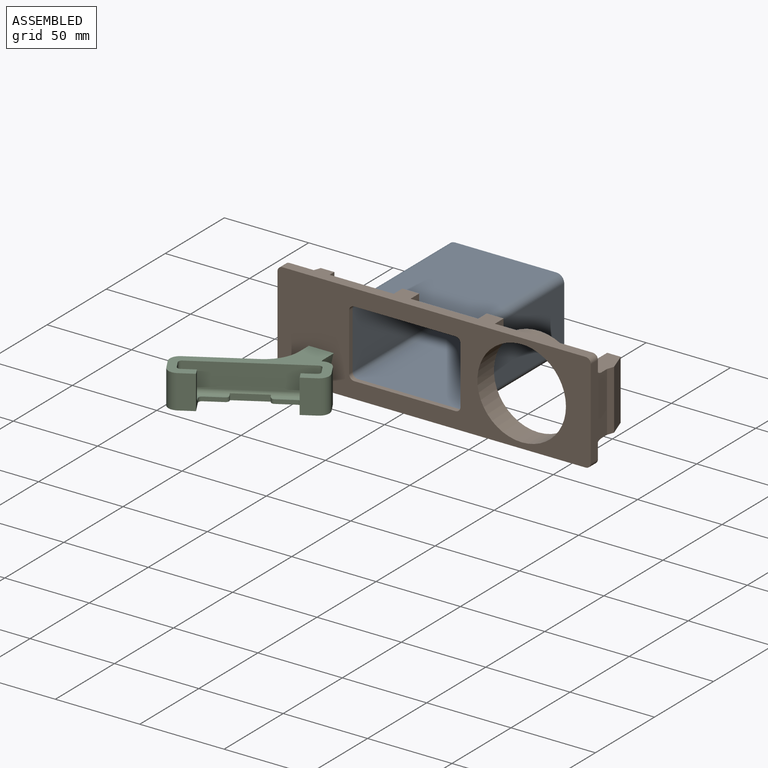
[diagram: assembled view]
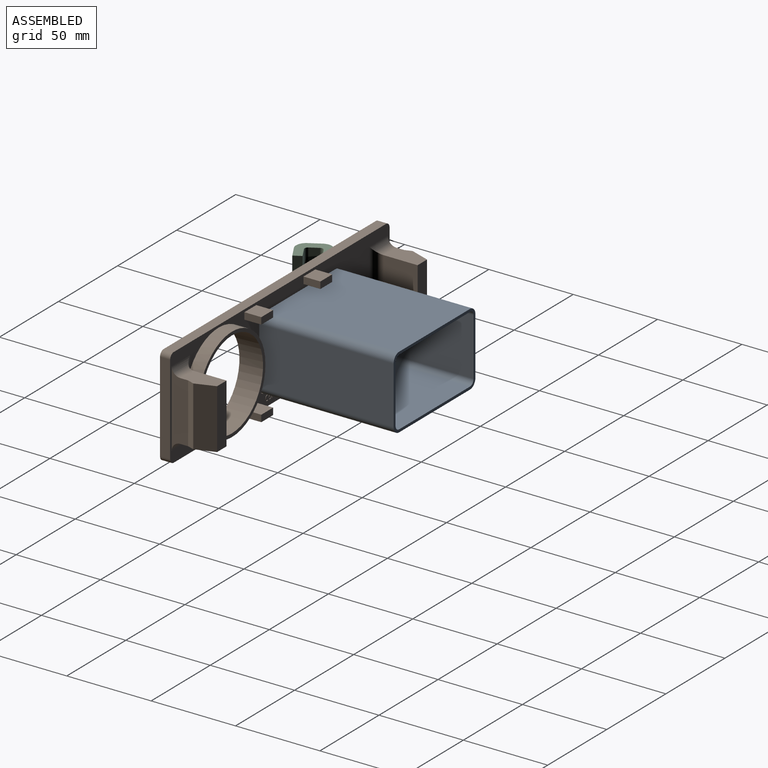
[diagram: assembled view, second angle]
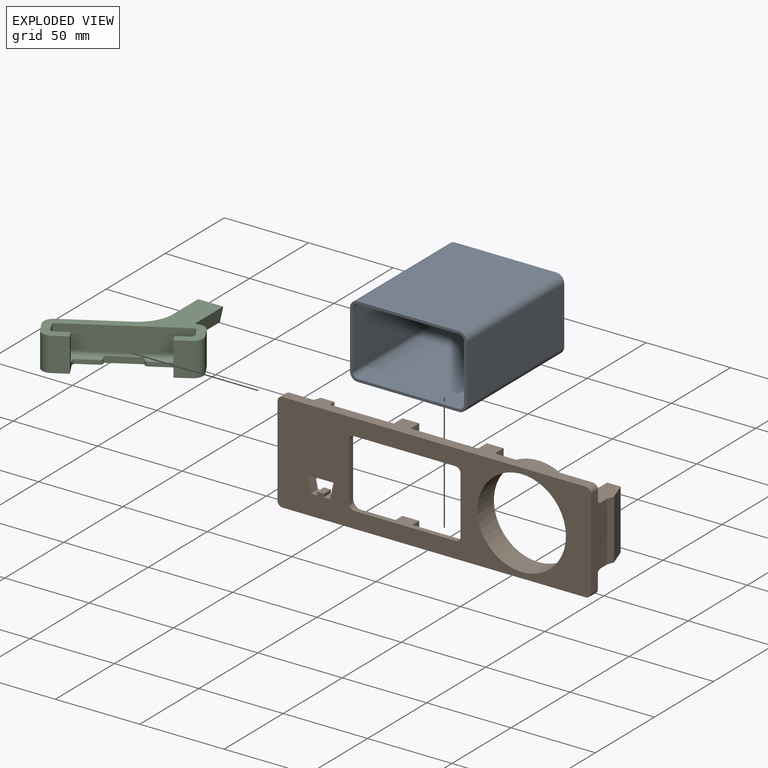
[diagram: exploded view]
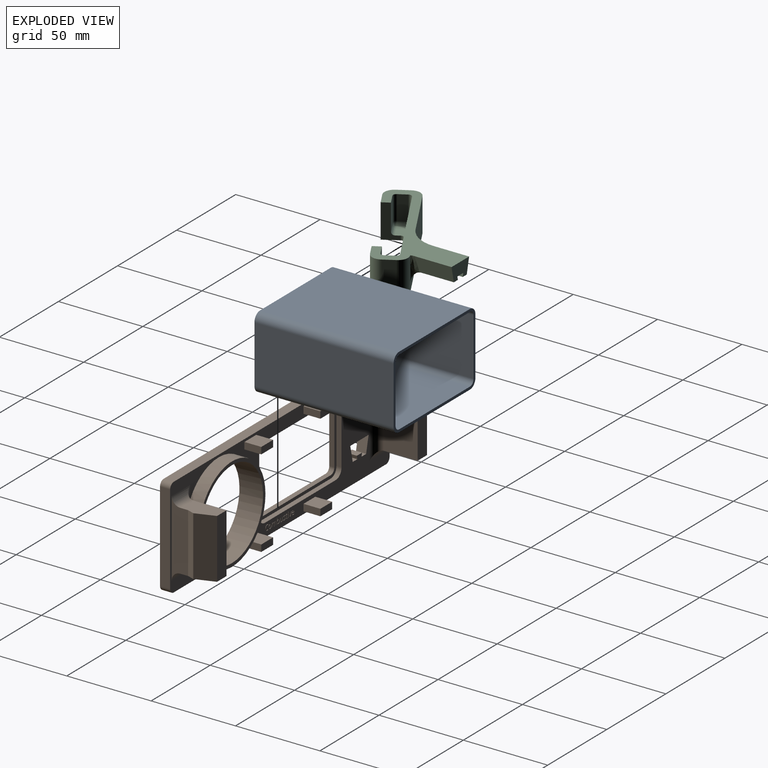
[diagram: exploded view, second angle]
ASSEMBLY  parts=3 mates=2
PART A: 18 faces, bbox 69.2x82.5x43.2 mm
  f0: plane 82.5x60mm, normal (0,0,-1), area 4950mm2, adj f1,f15,f16,f17
  f1: cylinder r=3mm len=82.5mm, axis (0,-1,0), area 388.8mm2, adj f0,f2,f16,f17
  f2: plane 82.5x34mm, normal (1,0,0), area 2805mm2, adj f1,f3,f16,f17
  f3: cylinder r=3mm len=82.5mm, axis (0,-1,0), area 388.8mm2, adj f2,f4,f16,f17
  f4: plane 82.5x60mm, normal (0,0,1), area 4950mm2, adj f3,f5,f16,f17
  f5: cylinder r=3mm len=82.5mm, axis (0,-1,0), area 388.8mm2, adj f4,f6,f16,f17
  f6: plane 82.5x34mm, normal (-1,0,0), area 2805mm2, adj f5,f15,f16,f17
  f7: cylinder r=4.6mm len=82.5mm, axis (0,-1,0), area 596.1mm2, adj f8,f14,f16,f17
  f8: plane 82.5x34mm, normal (-1,0,0), area 2805mm2, adj f7,f9,f16,f17
  f9: cylinder r=4.6mm len=82.5mm, axis (0,-1,0), area 596.1mm2, adj f8,f10,f16,f17
  f10: plane 82.5x60mm, normal (0,0,1), area 4950mm2, adj f9,f11,f16,f17
  f11: cylinder r=4.6mm len=82.5mm, axis (0,-1,0), area 596.1mm2, adj f10,f12,f16,f17
  f12: plane 82.5x34mm, normal (1,0,0), area 2805mm2, adj f11,f13,f16,f17
  f13: cylinder r=4.6mm len=82.5mm, axis (0,-1,0), area 596.1mm2, adj f12,f14,f16,f17
  f14: plane 82.5x60mm, normal (0,0,-1), area 4950mm2, adj f7,f13,f16,f17
  f15: cylinder r=3mm len=82.5mm, axis (0,-1,0), area 388.8mm2, adj f0,f6,f16,f17
  f16: plane 69.2x43.2mm, normal (0,1,0), area 339mm2, adj f0,f1,f2,f3,f4,f5,f6,f7
  f17: plane 69.2x43.2mm, normal (0,-1,0), area 339mm2, adj f0,f1,f2,f3,f4,f5,f6,f7
PART B: 277 faces, bbox 185.7x31x59.3 mm
  f0: plane 185.7x59.25mm, normal (0,1,0), area 3843.5mm2, adj f12,f18,f19,f20,f21,f27,f29,f31
  f1: plane 34x3mm, normal (1,0,0), area 102mm2, adj f5,f8,f9,f276
  f2: plane 60x3mm, normal (0,0,1), area 180mm2, adj f5,f6,f9,f276
  f3: plane 34x3mm, normal (-1,0,0), area 102mm2, adj f6,f7,f9,f276
  f4: plane 60x3mm, normal (0,0,-1), area 180mm2, adj f7,f8,f9,f276
  f5: cylinder r=3mm len=3mm, axis (0,1,0), area 14.1mm2, adj f1,f2,f9,f276
  f6: cylinder r=3mm len=3mm, axis (0,-1,0), area 14.1mm2, adj f2,f3,f9,f276
  f7: cylinder r=3mm len=3mm, axis (0,1,0), area 14.1mm2, adj f3,f4,f9,f276
  f8: cylinder r=3mm len=3mm, axis (0,-1,0), area 14.1mm2, adj f1,f4,f9,f276
  f9: plane 185.7x59.25mm, normal (0,-1,0), area 6079.8mm2, adj f1,f2,f3,f4,f5,f6,f7,f8
  f10: plane 35.25x11.3mm, normal (-0.94,0.33,0), area 422.5mm2, adj f11,f13,f15,f16
  f11: plane 35.25x4mm, normal (-0.94,-0.33,0), area 149.4mm2, adj f10,f12,f13,f15
  f12: plane 45.25x9.7mm, normal (-1,0,0), area 352.7mm2, adj f0,f11,f13,f15,f35,f37
  f13: plane 20x12mm, normal (0,0,-1), area 208mm2, adj f10,f11,f12,f14,f16,f37
  f14: plane 35.25x20mm, normal (1,0,0), area 705mm2, adj f13,f15,f16,f36
  f15: plane 20x12mm, normal (0,0,1), area 208mm2, adj f10,f11,f12,f14,f16,f35
  f16: plane 35.25x8mm, normal (0,1,0), area 282mm2, adj f10,f13,f14,f15
  f17: plane 20x12mm, normal (0,0,-1), area 208mm2, adj f23,f25,f26,f27,f28,f39
  f18: plane 179.7x6mm, normal (0,0,-1), area 1078.2mm2, adj f0,f9,f31,f34
  f19: plane 53.25x6mm, normal (1,0,0), area 319.5mm2, adj f0,f9,f31,f32
  f20: plane 179.7x6mm, normal (0,0,1), area 1078.2mm2, adj f0,f9,f32,f33
  f21: plane 53.25x6mm, normal (-1,0,0), area 319.5mm2, adj f0,f9,f33,f34
  f22: cylinder r=26.25mm len=52.5mm, axis (0,-1,0), area 2309.1mm2, adj f9,f30
  f23: plane 35.25x20mm, normal (-1,0,0), area 705mm2, adj f17,f24,f25,f40
  f24: plane 20x12mm, normal (0,0,1), area 208mm2, adj f23,f25,f26,f27,f28,f38
  f25: plane 35.25x8mm, normal (0,1,0), area 282mm2, adj f17,f23,f24,f28
  f26: plane 35.25x4mm, normal (0.94,-0.33,0), area 149.4mm2, adj f17,f24,f27,f28
  f27: plane 45.25x9.7mm, normal (1,0,0), area 352.7mm2, adj f0,f17,f24,f26,f38,f39
  f28: plane 35.25x11.3mm, normal (0.94,0.33,0), area 422.5mm2, adj f17,f24,f25,f26
  f29: cylinder r=28.25mm len=56.5mm, axis (0,-1,0), area 1382.8mm2, adj f0,f30,f40
  f30: plane 56.5x56.5mm, normal (0,1,0), area 342.4mm2, adj f22,f29
  f31: cylinder r=3mm len=6mm, axis (0,-1,0), area 28.3mm2, adj f0,f9,f18,f19
  f32: cylinder r=3mm len=6mm, axis (0,1,0), area 28.3mm2, adj f0,f9,f19,f20
  f33: cylinder r=3mm len=6mm, axis (0,-1,0), area 28.3mm2, adj f0,f9,f20,f21
  f34: cylinder r=3mm len=6mm, axis (0,1,0), area 28.3mm2, adj f0,f9,f18,f21
  f35: cylinder r=5mm len=15.6mm, axis (1,0,0), area 97.5mm2, adj f0,f12,f15,f36
  f36: cylinder r=5mm len=45.25mm, axis (0,0,-1), area 305.4mm2, adj f0,f14,f35,f37
  f37: cylinder r=5mm len=15.6mm, axis (-1,0,0), area 97.5mm2, adj f0,f12,f13,f36
  f38: cylinder r=5mm len=15.6mm, axis (-1,0,0), area 97.5mm2, adj f0,f24,f27,f40
  f39: cylinder r=5mm len=15.6mm, axis (1,0,0), area 97.5mm2, adj f0,f17,f27,f40
  f40: cylinder r=5mm len=45.25mm, axis (0,0,-1), area 208mm2, adj f0,f23,f29,f38,f39
  f41: plane 10x10mm, normal (0,0,1), area 100mm2, adj f0,f42,f44,f45
  f42: plane 10x4mm, normal (1,0,0), area 40mm2, adj f0,f41,f43,f45
  f43: plane 10x10mm, normal (0,0,-1), area 100mm2, adj f0,f42,f44,f45
  f44: plane 10x4mm, normal (-1,0,0), area 40mm2, adj f0,f41,f43,f45
  f45: plane 10x4mm, normal (0,1,0), area 40mm2, adj f41,f42,f43,f44
  f46: plane 10x10mm, normal (0,0,1), area 100mm2, adj f0,f47,f49,f50
  f47: plane 10x4mm, normal (1,0,0), area 40mm2, adj f0,f46,f48,f50
  f48: plane 10x10mm, normal (0,0,-1), area 100mm2, adj f0,f47,f49,f50
  f49: plane 10x4mm, normal (-1,0,0), area 40mm2, adj f0,f46,f48,f50
  f50: plane 10x4mm, normal (0,1,0), area 40mm2, adj f46,f47,f48,f49
  f51: plane 10x10mm, normal (0,0,1), area 100mm2, adj f0,f52,f54,f55
  f52: plane 10x4mm, normal (1,0,0), area 40mm2, adj f0,f51,f53,f55
  f53: plane 10x10mm, normal (0,0,-1), area 100mm2, adj f0,f52,f54,f55
  f54: plane 10x4mm, normal (-1,0,0), area 40mm2, adj f0,f51,f53,f55
  f55: plane 10x4mm, normal (0,1,0), area 40mm2, adj f51,f52,f53,f54
  f56: plane 10x10mm, normal (0,0,1), area 100mm2, adj f0,f57,f59,f60
  f57: plane 10x4mm, normal (1,0,0), area 40mm2, adj f0,f56,f58,f60
  f58: plane 10x10mm, normal (0,0,-1), area 100mm2, adj f0,f57,f59,f60
  f59: plane 10x4mm, normal (-1,0,0), area 40mm2, adj f0,f56,f58,f60
  f60: plane 10x4mm, normal (0,1,0), area 40mm2, adj f56,f57,f58,f59
  f61: plane 6x2mm, normal (-0.98,0,-0.22), area 12.3mm2, adj f0,f9,f62,f68
  f62: plane 6x4.39mm, normal (0,0,1), area 26.3mm2, adj f0,f9,f61,f63
  f63: plane 6x2mm, normal (0.98,0,-0.22), area 12.3mm2, adj f0,f9,f62,f64
  f64: plane 6x3.91mm, normal (0,0,1), area 23.5mm2, adj f0,f9,f63,f65
  f65: plane 9.4x6mm, normal (-0.98,0,0.22), area 57.8mm2, adj f0,f9,f64,f66
  f66: plane 15.5x6mm, normal (0,0,-1), area 93mm2, adj f0,f9,f65,f67
  f67: plane 9.4x6mm, normal (0.98,0,0.22), area 57.8mm2, adj f0,f9,f66,f68
  f68: plane 6x3.91mm, normal (0,0,1), area 23.5mm2, adj f0,f9,f61,f67
  f69: plane 2.41x0.4mm, normal (1,0,0), area 1mm2, adj f0,f70,f72,f73
  f70: plane 0.4x0.37mm, normal (0,0,-1), area 0.1mm2, adj f0,f69,f71,f73
  f71: plane 2.41x0.4mm, normal (-1,0,0), area 1mm2, adj f0,f70,f72,f73
  f72: plane 0.4x0.37mm, normal (0,0,1), area 0.1mm2, adj f0,f69,f71,f73
  f73: plane 2.41x0.37mm, normal (0,1,0), area 0.9mm2, adj f69,f70,f71,f72
  f74: extruded ~0.4x0.18mm, area 0.1mm2, adj f0,f75,f81,f82
  f75: extruded ~0.4x0.15mm, area 0.1mm2, adj f0,f74,f76,f82
  f76: extruded ~0.4x0.15mm, area 0.1mm2, adj f0,f75,f77,f82
  f77: extruded ~0.4x0.18mm, area 0.1mm2, adj f0,f76,f78,f82
  f78: extruded ~0.4x0.18mm, area 0.1mm2, adj f0,f77,f79,f82
  f79: extruded ~0.4x0.15mm, area 0.1mm2, adj f0,f78,f80,f82
  f80: extruded ~0.4x0.15mm, area 0.1mm2, adj f0,f79,f81,f82
  f81: extruded ~0.4x0.18mm, area 0.1mm2, adj f0,f74,f80,f82
  f82: plane 0.49x0.43mm, normal (0,1,0), area 0.2mm2, adj f74,f75,f76,f77,f78,f79,f80,f81
  f83: plane 0.43x0.4mm, normal (0,0,1), area 0.2mm2, adj f0,f84,f92,f93
  f84: plane 2.41x0.92mm, normal (0.93,0,0.35), area 1mm2, adj f0,f83,f85,f93
  f85: plane 0.4x0.39mm, normal (0,0,-1), area 0.2mm2, adj f0,f84,f86,f93
  f86: extruded ~1.6x0.58mm, area 0.7mm2, adj f0,f85,f87,f93
  f87: extruded ~0.48x0.4mm, area 0.2mm2, adj f0,f86,f88,f93
  f88: plane 0.4x0.02mm, normal (0,0,-1), area 0mm2, adj f0,f87,f89,f93
  f89: extruded ~0.65x0.4mm, area 0.3mm2, adj f0,f88,f90,f93
  f90: plane 1.43x0.52mm, normal (0.94,0,-0.34), area 0.6mm2, adj f0,f89,f91,f93
  f91: plane 0.4x0.39mm, normal (0,0,-1), area 0.2mm2, adj f0,f90,f92,f93
  f92: plane 2.41x0.92mm, normal (-0.93,0,0.35), area 1mm2, adj f0,f83,f91,f93
  f93: plane 2.41x2.26mm, normal (0,1,0), area 1.7mm2, adj f83,f84,f85,f86,f87,f88,f89,f90
  f94: extruded ~0.91x0.4mm, area 0.4mm2, adj f0,f95,f110,f111
  f95: extruded ~0.8x0.4mm, area 0.4mm2, adj f0,f94,f96,f111
  f96: extruded ~0.82x0.4mm, area 0.4mm2, adj f0,f95,f97,f111
  f97: extruded ~0.92x0.4mm, area 0.4mm2, adj f0,f96,f98,f111
  f98: extruded ~0.66x0.4mm, area 0.3mm2, adj f0,f97,f99,f111
  f99: extruded ~0.44x0.4mm, area 0.2mm2, adj f0,f98,f100,f111
  f100: extruded ~0.57x0.4mm, area 0.2mm2, adj f0,f99,f101,f111
  f101: extruded ~0.82x0.4mm, area 0.4mm2, adj f0,f100,f110,f111
  f102: extruded ~0.7x0.4mm, area 0.3mm2, adj f103,f109,f111,f112
  f103: extruded ~0.54x0.4mm, area 0.2mm2, adj f102,f104,f111,f112
  f104: extruded ~0.55x0.4mm, area 0.2mm2, adj f103,f105,f111,f112
  f105: extruded ~0.7x0.4mm, area 0.3mm2, adj f104,f106,f111,f112
  f106: extruded ~0.71x0.4mm, area 0.3mm2, adj f105,f107,f111,f112
  f107: extruded ~0.55x0.4mm, area 0.2mm2, adj f106,f108,f111,f112
  f108: extruded ~0.54x0.4mm, area 0.2mm2, adj f107,f109,f111,f112
  f109: extruded ~0.7x0.4mm, area 0.3mm2, adj f102,f108,f111,f112
  f110: extruded ~0.92x0.4mm, area 0.4mm2, adj f0,f94,f101,f111
  f111: plane 2.5x2.22mm, normal (0,1,0), area 2.2mm2, adj f94,f95,f96,f97,f98,f99,f100,f101
  f112: plane 1.88x1.46mm, normal (0,1,0), area 2.3mm2, adj f102,f103,f104,f105,f106,f107,f108,f109
  f113: extruded ~0.4x0.28mm, area 0.1mm2, adj f0,f114,f131,f132
  f114: extruded ~0.4x0.33mm, area 0.1mm2, adj f0,f113,f115,f132
  f115: plane 1.42x0.4mm, normal (1,0,0), area 0.6mm2, adj f0,f114,f116,f132
  f116: plane 0.7x0.4mm, normal (0,0,1), area 0.3mm2, adj f0,f115,f117,f132
  f117: plane 0.4x0.28mm, normal (1,0,0), area 0.1mm2, adj f0,f116,f118,f132
  f118: plane 0.7x0.4mm, normal (0,0,-1), area 0.3mm2, adj f0,f117,f119,f132
  f119: plane 0.56x0.4mm, normal (1,0,0), area 0.2mm2, adj f0,f118,f120,f132
  f120: plane 0.4x0.21mm, normal (0,0,-1), area 0.1mm2, adj f0,f119,f121,f132
  f121: plane 0.51x0.4mm, normal (-0.96,0,-0.29), area 0.2mm2, adj f0,f120,f122,f132
  f122: plane 0.4x0.35mm, normal (-0.4,0,-0.92), area 0.2mm2, adj f0,f121,f123,f132
  f123: plane 0.4x0.18mm, normal (-1,0,0), area 0.1mm2, adj f0,f122,f124,f132
  f124: plane 0.4x0.35mm, normal (0,0,1), area 0.1mm2, adj f0,f123,f125,f132
  f125: plane 1.43x0.4mm, normal (-1,0,0), area 0.6mm2, adj f0,f124,f126,f132
  f126: extruded ~0.74x0.7mm, area 0.5mm2, adj f0,f125,f127,f132
  f127: extruded ~0.4x0.21mm, area 0.1mm2, adj f0,f126,f128,f132
  f128: extruded ~0.4x0.17mm, area 0.1mm2, adj f0,f127,f129,f132
  f129: plane 0.4x0.28mm, normal (1,0,0), area 0.1mm2, adj f0,f128,f130,f132
  f130: extruded ~0.4x0.14mm, area 0.1mm2, adj f0,f129,f131,f132
  f131: extruded ~0.4x0.19mm, area 0.1mm2, adj f0,f113,f130,f132
  f132: plane 3.01x1.43mm, normal (0,1,0), area 1.5mm2, adj f113,f114,f115,f116,f117,f118,f119,f120
  f133: extruded ~0.4x0.4mm, area 0.2mm2, adj f0,f134,f157,f158
  f134: extruded ~0.58x0.4mm, area 0.3mm2, adj f0,f133,f135,f158
  f135: extruded ~0.42x0.4mm, area 0.2mm2, adj f0,f134,f136,f158
  f136: extruded ~0.4x0.16mm, area 0.1mm2, adj f0,f135,f137,f158
  f137: extruded ~0.4x0.17mm, area 0.1mm2, adj f0,f136,f138,f158
  f138: extruded ~0.4x0.22mm, area 0.1mm2, adj f0,f137,f139,f158
  f139: extruded ~0.4x0.39mm, area 0.2mm2, adj f0,f138,f140,f158
  f140: extruded ~0.66x0.4mm, area 0.3mm2, adj f0,f139,f141,f158
  f141: plane 0.4x0.3mm, normal (0.92,0,0.4), area 0.1mm2, adj f0,f140,f142,f158
  f142: extruded ~0.76x0.4mm, area 0.3mm2, adj f0,f141,f143,f158
  f143: extruded ~0.66x0.4mm, area 0.3mm2, adj f0,f142,f144,f158
  f144: extruded ~0.47x0.4mm, area 0.2mm2, adj f0,f143,f145,f158
  f145: extruded ~0.4x0.28mm, area 0.1mm2, adj f0,f144,f146,f158
  f146: extruded ~0.4x0.21mm, area 0.1mm2, adj f0,f145,f147,f158
  f147: extruded ~0.48x0.4mm, area 0.2mm2, adj f0,f146,f148,f158
  f148: extruded ~0.48x0.4mm, area 0.2mm2, adj f0,f147,f149,f158
  f149: extruded ~0.4x0.24mm, area 0.1mm2, adj f0,f148,f150,f158
  f150: extruded ~0.4x0.28mm, area 0.1mm2, adj f0,f149,f151,f158
  f151: extruded ~0.44x0.4mm, area 0.2mm2, adj f0,f150,f152,f158
  f152: extruded ~0.4x0.38mm, area 0.2mm2, adj f0,f151,f153,f158
  f153: extruded ~0.4x0.37mm, area 0.2mm2, adj f0,f152,f154,f158
  f154: plane 0.4x0.34mm, normal (-1,0,0), area 0.1mm2, adj f0,f153,f155,f158
  f155: extruded ~0.75x0.4mm, area 0.3mm2, adj f0,f154,f156,f158
  f156: extruded ~0.7x0.4mm, area 0.3mm2, adj f0,f155,f157,f158
  f157: extruded ~0.52x0.4mm, area 0.2mm2, adj f0,f133,f156,f158
  f158: plane 2.5x1.71mm, normal (0,1,0), area 1.8mm2, adj f133,f134,f135,f136,f137,f138,f139,f140
  f159: plane 0.4x0.37mm, normal (0,0,-1), area 0.1mm2, adj f0,f160,f175,f176
  f160: plane 1.58x0.4mm, normal (-1,0,0), area 0.6mm2, adj f0,f159,f161,f176
  f161: extruded ~0.67x0.4mm, area 0.3mm2, adj f0,f160,f162,f176
  f162: extruded ~0.66x0.4mm, area 0.3mm2, adj f0,f161,f163,f176
  f163: extruded ~0.45x0.4mm, area 0.2mm2, adj f0,f162,f164,f176
  f164: extruded ~0.4x0.31mm, area 0.2mm2, adj f0,f163,f165,f176
  f165: plane 0.4x0.02mm, normal (0,0,1), area 0mm2, adj f0,f164,f166,f176
  f166: plane 0.4x0.32mm, normal (-0.99,0,0.16), area 0.1mm2, adj f0,f165,f167,f176
  f167: plane 0.4x0.3mm, normal (0,0,1), area 0.1mm2, adj f0,f166,f168,f176
  f168: plane 2.41x0.4mm, normal (1,0,0), area 1mm2, adj f0,f167,f169,f176
  f169: plane 0.4x0.37mm, normal (0,0,-1), area 0.1mm2, adj f0,f168,f170,f176
  f170: plane 1.27x0.4mm, normal (-1,0,0), area 0.5mm2, adj f0,f169,f171,f176
  f171: extruded ~0.68x0.4mm, area 0.3mm2, adj f0,f170,f172,f176
  f172: extruded ~0.55x0.4mm, area 0.2mm2, adj f0,f171,f173,f176
  f173: extruded ~0.42x0.4mm, area 0.2mm2, adj f0,f172,f174,f176
  f174: extruded ~0.44x0.4mm, area 0.2mm2, adj f0,f173,f175,f176
  f175: plane 1.56x0.4mm, normal (1,0,0), area 0.6mm2, adj f0,f159,f174,f176
  f176: plane 2.46x2.02mm, normal (0,1,0), area 2.1mm2, adj f159,f160,f161,f162,f163,f164,f165,f166
  f177: plane 0.4x0.36mm, normal (0,0,1), area 0.1mm2, adj f0,f178,f204,f205
  f178: plane 1.57x0.4mm, normal (1,0,0), area 0.6mm2, adj f0,f177,f179,f205
  f179: extruded ~0.67x0.4mm, area 0.3mm2, adj f0,f178,f180,f205
  f180: extruded ~0.61x0.4mm, area 0.3mm2, adj f0,f179,f181,f205
  f181: extruded ~0.47x0.4mm, area 0.2mm2, adj f0,f180,f182,f205
  f182: extruded ~0.4x0.31mm, area 0.2mm2, adj f0,f181,f183,f205
  f183: plane 0.4x0.02mm, normal (0,0,-1), area 0mm2, adj f0,f182,f184,f205
  f184: extruded ~0.74x0.41mm, area 0.4mm2, adj f0,f183,f185,f205
  f185: extruded ~0.42x0.4mm, area 0.2mm2, adj f0,f184,f186,f205
  f186: extruded ~0.4x0.29mm, area 0.2mm2, adj f0,f185,f187,f205
  f187: plane 0.4x0.02mm, normal (0,0,-1), area 0mm2, adj f0,f186,f188,f205
  f188: plane 0.4x0.33mm, normal (0.98,0,-0.18), area 0.1mm2, adj f0,f187,f189,f205
  f189: plane 0.4x0.3mm, normal (0,0,-1), area 0.1mm2, adj f0,f188,f190,f205
  f190: plane 2.41x0.4mm, normal (-1,0,0), area 1mm2, adj f0,f189,f191,f205
  f191: plane 0.4x0.37mm, normal (0,0,1), area 0.1mm2, adj f0,f190,f192,f205
  f192: plane 1.27x0.4mm, normal (1,0,0), area 0.5mm2, adj f0,f191,f193,f205
  f193: extruded ~0.67x0.4mm, area 0.3mm2, adj f0,f192,f194,f205
  f194: extruded ~0.5x0.4mm, area 0.2mm2, adj f0,f193,f195,f205
  f195: extruded ~0.4x0.39mm, area 0.2mm2, adj f0,f194,f196,f205
  f196: extruded ~0.43x0.4mm, area 0.2mm2, adj f0,f195,f197,f205
  f197: plane 1.57x0.4mm, normal (-1,0,0), area 0.6mm2, adj f0,f196,f198,f205
  f198: plane 0.4x0.37mm, normal (0,0,1), area 0.1mm2, adj f0,f197,f199,f205
  f199: plane 1.35x0.4mm, normal (1,0,0), area 0.5mm2, adj f0,f198,f200,f205
  f200: extruded ~0.6x0.4mm, area 0.3mm2, adj f0,f199,f201,f205
  f201: extruded ~0.5x0.4mm, area 0.2mm2, adj f0,f200,f202,f205
  f202: extruded ~0.4x0.38mm, area 0.2mm2, adj f0,f201,f203,f205
  f203: extruded ~0.43x0.4mm, area 0.2mm2, adj f0,f202,f204,f205
  f204: plane 1.57x0.4mm, normal (-1,0,0), area 0.6mm2, adj f0,f177,f203,f205
  f205: plane 3.44x2.46mm, normal (0,1,0), area 3.3mm2, adj f177,f178,f179,f180,f181,f182,f183,f184
  f206: extruded ~0.76x0.4mm, area 0.3mm2, adj f0,f207,f228,f229
  f207: plane 0.4x0.02mm, normal (0,0,-1), area 0mm2, adj f0,f206,f208,f229
  f208: extruded ~0.5x0.4mm, area 0.2mm2, adj f0,f207,f209,f229
  f209: plane 0.83x0.4mm, normal (1,0,0), area 0.3mm2, adj f0,f208,f210,f229
  f210: plane 0.4x0.37mm, normal (0,0,-1), area 0.1mm2, adj f0,f209,f211,f229
  f211: plane 3.42x0.4mm, normal (-1,0,0), area 1.4mm2, adj f0,f210,f212,f229
  f212: plane 0.4x0.26mm, normal (0,0,1), area 0.1mm2, adj f0,f211,f213,f229
  f213: plane 0.4x0.31mm, normal (0.97,0,0.24), area 0.1mm2, adj f0,f212,f214,f229
  f214: plane 0.4x0.03mm, normal (0,0,1), area 0mm2, adj f0,f213,f215,f229
  f215: extruded ~0.4x0.33mm, area 0.2mm2, adj f0,f214,f216,f229
  f216: extruded ~0.43x0.4mm, area 0.2mm2, adj f0,f215,f217,f229
  f217: extruded ~0.74x0.4mm, area 0.3mm2, adj f0,f216,f218,f229
  f218: extruded ~0.92x0.4mm, area 0.4mm2, adj f0,f217,f219,f229
  f219: extruded ~0.92x0.4mm, area 0.4mm2, adj f0,f218,f228,f229
  f220: extruded ~0.51x0.4mm, area 0.2mm2, adj f221,f227,f229,f230
  f221: extruded ~0.7x0.4mm, area 0.3mm2, adj f220,f222,f229,f230
  f222: extruded ~0.71x0.4mm, area 0.3mm2, adj f221,f223,f229,f230
  f223: extruded ~0.5x0.4mm, area 0.2mm2, adj f222,f224,f229,f230
  f224: extruded ~0.54x0.4mm, area 0.2mm2, adj f223,f225,f229,f230
  f225: extruded ~0.73x0.4mm, area 0.3mm2, adj f224,f226,f229,f230
  f226: extruded ~0.72x0.4mm, area 0.3mm2, adj f225,f227,f229,f230
  f227: extruded ~0.54x0.4mm, area 0.2mm2, adj f220,f226,f229,f230
  f228: extruded ~0.74x0.4mm, area 0.3mm2, adj f0,f206,f219,f229
  f229: plane 3.47x2.12mm, normal (0,1,0), area 2.8mm2, adj f206,f207,f208,f209,f210,f211,f212,f213
  f230: plane 1.88x1.38mm, normal (0,1,0), area 2.2mm2, adj f220,f221,f222,f223,f224,f225,f226,f227
  f231: extruded ~0.42x0.4mm, area 0.2mm2, adj f0,f232,f249,f250
  f232: extruded ~0.4x0.37mm, area 0.2mm2, adj f0,f231,f233,f250
  f233: plane 0.4x0.33mm, normal (1,0,0), area 0.1mm2, adj f0,f232,f234,f250
  f234: extruded ~0.77x0.4mm, area 0.3mm2, adj f0,f233,f235,f250
  f235: extruded ~0.57x0.4mm, area 0.3mm2, adj f0,f234,f236,f250
  f236: extruded ~0.64x0.4mm, area 0.3mm2, adj f0,f235,f237,f250
  f237: plane 1.66x0.4mm, normal (0,0,1), area 0.7mm2, adj f0,f236,f238,f250
  f238: plane 0.4x0.23mm, normal (1,0,0), area 0.1mm2, adj f0,f237,f239,f250
  f239: extruded ~0.79x0.4mm, area 0.3mm2, adj f0,f238,f240,f250
  f240: extruded ~0.72x0.4mm, area 0.3mm2, adj f0,f239,f241,f250
  f241: extruded ~0.77x0.4mm, area 0.3mm2, adj f0,f240,f242,f250
  f242: extruded ~0.93x0.4mm, area 0.4mm2, adj f0,f241,f243,f250
  f243: extruded ~0.9x0.4mm, area 0.4mm2, adj f0,f242,f249,f250
  f244: extruded ~0.44x0.4mm, area 0.2mm2, adj f245,f248,f250,f251
  f245: extruded ~0.53x0.4mm, area 0.2mm2, adj f244,f246,f250,f251
  f246: plane 1.26x0.4mm, normal (0,0,-1), area 0.5mm2, adj f245,f247,f250,f251
  f247: extruded ~0.52x0.4mm, area 0.2mm2, adj f246,f248,f250,f251
  f248: extruded ~0.46x0.4mm, area 0.2mm2, adj f244,f247,f250,f251
  f249: extruded ~0.84x0.4mm, area 0.4mm2, adj f0,f231,f243,f250
  f250: plane 2.5x2.04mm, normal (0,1,0), area 2.3mm2, adj f231,f232,f233,f234,f235,f236,f237,f238
  f251: plane 1.26x0.71mm, normal (0,1,0), area 0.7mm2, adj f244,f245,f246,f247,f248
  f252: extruded ~0.73x0.4mm, area 0.3mm2, adj f0,f253,f266,f267
  f253: plane 0.4x0.32mm, normal (0.9,0,0.44), area 0.1mm2, adj f0,f252,f254,f267
  f254: extruded ~0.88x0.4mm, area 0.4mm2, adj f0,f253,f255,f267
  f255: extruded ~0.83x0.4mm, area 0.3mm2, adj f0,f254,f256,f267
  f256: extruded ~0.58x0.54mm, area 0.3mm2, adj f0,f255,f257,f267
  f257: extruded ~0.87x0.4mm, area 0.4mm2, adj f0,f256,f258,f267
  f258: extruded ~1.23x0.4mm, area 0.5mm2, adj f0,f257,f259,f267
  f259: extruded ~1.1x0.43mm, area 0.5mm2, adj f0,f258,f260,f267
  f260: extruded ~0.83x0.4mm, area 0.3mm2, adj f0,f259,f261,f267
  f261: plane 0.4x0.33mm, normal (1,0,0), area 0.1mm2, adj f0,f260,f262,f267
  f262: extruded ~0.77x0.4mm, area 0.3mm2, adj f0,f261,f263,f267
  f263: extruded ~0.84x0.4mm, area 0.4mm2, adj f0,f262,f264,f267
  f264: extruded ~0.98x0.4mm, area 0.4mm2, adj f0,f263,f265,f267
  f265: extruded ~0.97x0.4mm, area 0.4mm2, adj f0,f264,f266,f267
  f266: extruded ~0.84x0.4mm, area 0.4mm2, adj f0,f252,f265,f267
  f267: plane 3.31x2.43mm, normal (0,1,0), area 2.3mm2, adj f252,f253,f254,f255,f256,f257,f258,f259
  f268: cylinder r=4.8mm len=4.8mm, axis (0,1,0), area 22.6mm2, adj f0,f269,f275,f276
  f269: plane 34x3mm, normal (1,0,0), area 102mm2, adj f0,f268,f270,f276
  f270: cylinder r=4.8mm len=4.8mm, axis (0,1,0), area 22.6mm2, adj f0,f269,f271,f276
  f271: plane 60x3mm, normal (0,0,-1), area 180mm2, adj f0,f270,f272,f276
  f272: cylinder r=4.8mm len=4.8mm, axis (0,1,0), area 22.6mm2, adj f0,f271,f273,f276
  f273: plane 34x3mm, normal (-1,0,0), area 102mm2, adj f0,f272,f274,f276
  f274: cylinder r=4.8mm len=4.8mm, axis (0,1,0), area 22.6mm2, adj f0,f273,f275,f276
  f275: plane 60x3mm, normal (0,0,1), area 180mm2, adj f0,f268,f274,f276
  f276: plane 69.6x43.6mm, normal (0,1,0), area 382.5mm2, adj f1,f2,f3,f4,f5,f6,f7,f8
PART C: 54 faces, bbox 77.2x78.3x26.4 mm
  f0: plane 8.48x8.36mm, normal (0,0,1), area 33.1mm2, adj f26,f27,f28,f34,f44
  f1: plane 20x7.79mm, normal (0.5,-0.87,0), area 180mm2, adj f2,f7,f26,f49
  f2: plane 75.12x52.83mm, normal (0,0,-1), area 913.1mm2, adj f1,f3,f14,f15,f16,f17,f18,f19
  f3: plane 3.7x0.35mm, normal (0.87,0.5,0), area 1.4mm2, adj f2,f14,f28,f45
  f4: plane 29.18x8.87mm, normal (-0.98,0,0.22), area 65.3mm2, adj f5,f11,f12,f15,f46
  f5: plane 20.6x3.4mm, normal (0,0,-1), area 66.7mm2, adj f4,f6,f12,f46
  f6: plane 22.18x9.12mm, normal (0.98,0,-0.22), area 192.6mm2, adj f5,f7,f12,f46,f52
  f7: plane 76.93x75.85mm, normal (0,0,1), area 1071.8mm2, adj f1,f6,f8,f12,f15,f16,f17,f18
  f8: plane 21.19x8.9mm, normal (-0.98,0,-0.22), area 188mm2, adj f7,f9,f12,f53
  f9: plane 25.43x4.19mm, normal (0,0,-1), area 82.5mm2, adj f8,f10,f12,f47,f53
  f10: plane 32.24x10.07mm, normal (0.98,0,0.22), area 70.7mm2, adj f9,f11,f12,f15,f47
  f11: plane 30.17x5.01mm, normal (0,0,-1), area 144mm2, adj f4,f10,f12,f15
  f12: plane 14.88x8.9mm, normal (0,1,0), area 105.7mm2, adj f4,f5,f6,f7,f8,f9,f10,f11
  f13: plane 10.09x7.48mm, normal (0,0,1), area 33.1mm2, adj f25,f28,f29,f35,f42
  f14: plane 17.32x10mm, normal (0.5,-0.87,0), area 74mm2, adj f2,f3,f19,f28
  f15: plane 59.32x34.25mm, normal (-0.5,0.87,0), area 984.3mm2, adj f2,f4,f7,f10,f11,f46,f47,f48
  f16: plane 20x6.58mm, normal (-0.87,-0.5,0), area 152mm2, adj f2,f7,f48,f49
  f17: plane 20x7.79mm, normal (0.5,-0.87,0), area 180mm2, adj f2,f7,f25,f50
  f18: plane 20x6.58mm, normal (0.87,0.5,0), area 152mm2, adj f2,f7,f50,f51
  f19: plane 3.7x0.35mm, normal (-0.87,-0.5,0), area 1.4mm2, adj f2,f14,f28,f43
  f20: plane 15.5x6.93mm, normal (-0.5,0.87,0), area 123.8mm2, adj f7,f26,f32,f33,f34
  f21: plane 14.5x4.85mm, normal (0.87,0.5,0), area 81.2mm2, adj f7,f27,f32,f39
  f22: plane 57.59x33.25mm, normal (0.5,-0.87,0), area 964.3mm2, adj f7,f28,f39,f41
  f23: plane 14.5x4.85mm, normal (-0.87,-0.5,0), area 81.2mm2, adj f7,f29,f37,f41
  f24: plane 15.5x6.93mm, normal (-0.5,0.87,0), area 123.8mm2, adj f7,f25,f35,f36,f37
  f25: plane 20x8.31mm, normal (-0.87,-0.5,0), area 112.4mm2, adj f2,f7,f13,f17,f24,f35,f42
  f26: plane 20x8.31mm, normal (0.87,0.5,0), area 112.4mm2, adj f0,f1,f2,f7,f20,f34,f44
  f27: cylinder r=3mm len=6.35mm, axis (-0.5,0.87,0), area 24mm2, adj f0,f21,f33,f38
  f28: cylinder r=3mm len=59.09mm, axis (0.87,0.5,0), area 251.3mm2, adj f0,f3,f13,f14,f19,f22,f30,f31
  f29: cylinder r=3mm len=6.35mm, axis (0.5,-0.87,0), area 24mm2, adj f13,f23,f36,f40
  f30: plane 9.74x5.63mm, normal (0.5,-0.87,0), area 28.1mm2, adj f2,f28,f44,f45
  f31: plane 9.74x5.63mm, normal (0.5,-0.87,0), area 28.1mm2, adj f2,f28,f42,f43
  f32: cylinder r=2mm len=14.5mm, axis (0,0,1), area 45.6mm2, adj f7,f20,f21,f33
  f33: torus R=1mm, axis (0.5,-0.87,0), area 11.2mm2, adj f20,f27,f32,f34
  f34: cylinder r=2mm len=7.06mm, axis (-0.87,-0.5,0), area 22mm2, adj f0,f20,f26,f33
  f35: cylinder r=2mm len=7.06mm, axis (-0.87,-0.5,0), area 22mm2, adj f13,f24,f25,f36
  f36: torus R=1mm, axis (0.5,-0.87,0), area 11.2mm2, adj f24,f29,f35,f37
  f37: cylinder r=2mm len=14.5mm, axis (0,0,1), area 45.6mm2, adj f7,f23,f24,f36
  f38: bspline ~4.1x3.16mm, area 6.5mm2, adj f27,f28,f39
  f39: cylinder r=2mm len=14.5mm, axis (0,0,1), area 45.6mm2, adj f7,f21,f22,f38
  f40: bspline ~4.1x3.16mm, area 6.5mm2, adj f28,f29,f41
  f41: cylinder r=2mm len=14.5mm, axis (0,0,1), area 45.6mm2, adj f7,f22,f23,f40
  f42: cylinder r=2mm len=2.73mm, axis (0,0,-1), area 7.9mm2, adj f2,f13,f25,f31
  f43: cylinder r=2mm len=3.26mm, axis (0,0,1), area 9.1mm2, adj f2,f19,f28,f31
  f44: cylinder r=2mm len=2.73mm, axis (0,0,1), area 7.9mm2, adj f0,f2,f26,f30
  f45: cylinder r=2mm len=3.26mm, axis (0,0,1), area 9.1mm2, adj f2,f3,f28,f30
  f46: cylinder r=6mm len=10.73mm, axis (0.87,0.5,0), area 53.5mm2, adj f4,f5,f6,f15,f52
  f47: cylinder r=6mm len=18.55mm, axis (0.87,0.5,0), area 97.9mm2, adj f9,f10,f15,f53
  f48: cylinder r=6mm len=20mm, axis (0,0,1), area 188.5mm2, adj f2,f7,f15,f16
  f49: cylinder r=6mm len=20mm, axis (0,0,1), area 188.5mm2, adj f1,f2,f7,f16
  f50: cylinder r=6mm len=20mm, axis (0,0,-1), area 188.5mm2, adj f2,f7,f17,f18
  f51: cylinder r=6mm len=20mm, axis (0,0,-1), area 188.5mm2, adj f2,f7,f15,f18,f52
  f52: bspline ~18.2x4.05mm, area 40.2mm2, adj f6,f7,f46,f51
  f53: cylinder r=20mm len=19.24mm, axis (0.22,0.12,-0.97), area 247.5mm2, adj f7,f8,f9,f15,f47
PLACE A t=(108.88,-13.52,-103.65)mm
PLACE B t=(108.88,-13.52,-103.65)mm
PLACE C t=(109.12,-9.95,-103.7)mm
MATE slider C.f6 <-> B.f65  axis (0.98,0,-0.22) through (48.23,-10.52,-116.57)mm
MATE fastened B.f276 <-> A.f17  axis (0,1,0) through (91.51,-10.52,-103.67)mm
